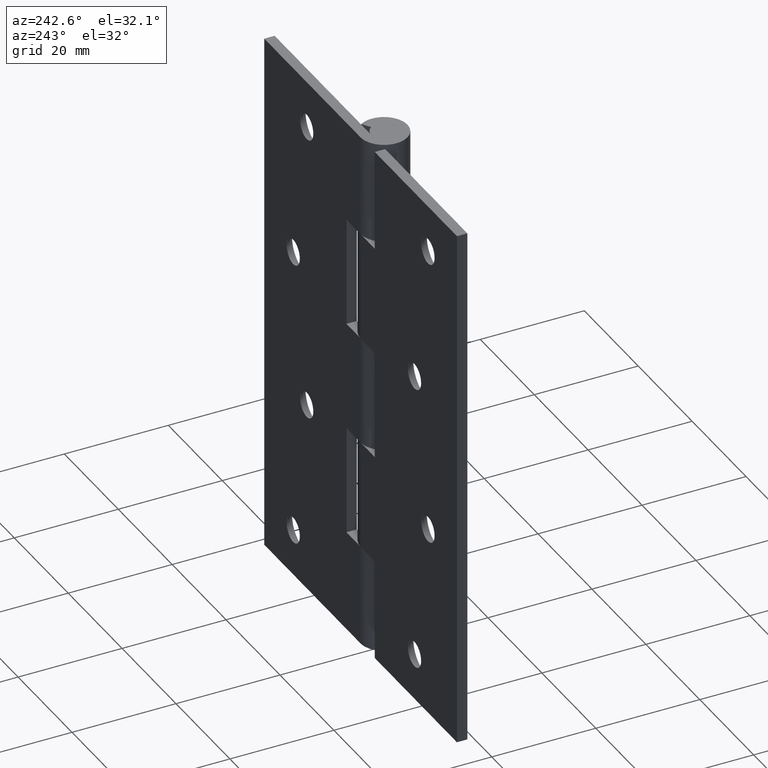
[diagram: clean part render]
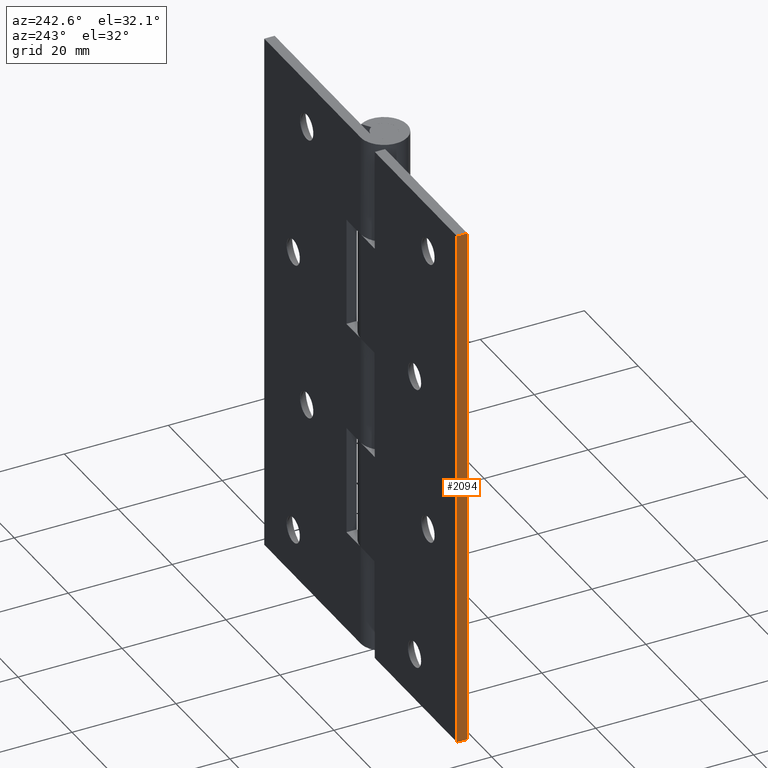
[diagram: same view with one face highlighted and labeled with its STEP entity id]
A machine part, auxiliary view. The second image highlights one B-rep face of the part: STEP entity #2094.
In plain terms, the highlighted face is a freeform B-spline surface patch.
Its self-contained STEP definition (entity closure, byte-faithful):
#2059=CARTESIAN_POINT('',(-35.750000000000000,2.400100003876388,-5.094900201904192));
#2060=CARTESIAN_POINT('',(-35.750000000000000,2.400100003876388,107.094910937757600));
#2061=CARTESIAN_POINT('',(-35.750000000000000,4.599900049767792,-5.094900201904192));
#2062=CARTESIAN_POINT('',(-35.750000000000000,4.599900049767792,107.094910937757600));
#2063=B_SPLINE_SURFACE_WITH_KNOTS('',1,1,((#2059,#2061),(#2060,#2062)),.UNSPECIFIED.,.F.,.F.,.U.,(2,2),(2,2),(0.0,112.189811139661800),(0.0,2.199800045891405),.UNSPECIFIED.);
#2064=CARTESIAN_POINT('',(-35.750000000000000,4.500000000000000,102.000007999999990));
#2065=VERTEX_POINT('',#2064);
#2066=CARTESIAN_POINT('',(-35.750000000000000,2.500000000000000,102.000007999999990));
#2067=VERTEX_POINT('',#2066);
#2068=CARTESIAN_POINT('',(-35.750000000000000,4.500000000000000,102.000007999999990));
#2069=CARTESIAN_POINT('',(-35.750000000000000,2.500000000000000,102.000007999999990));
#2070=QUASI_UNIFORM_CURVE('',1,(#2068,#2069),.UNSPECIFIED.,.F.,.U.);
#2071=EDGE_CURVE('',#2065,#2067,#2070,.T.);
#2072=ORIENTED_EDGE('',*,*,#2071,.F.);
#2073=CARTESIAN_POINT('',(-35.750000000000000,4.500000000000000,0.0));
#2074=VERTEX_POINT('',#2073);
#2075=CARTESIAN_POINT('',(-35.750000000000000,4.500000000000000,0.0));
#2076=CARTESIAN_POINT('',(-35.750000000000000,4.500000000000000,102.000007999999990));
#2077=QUASI_UNIFORM_CURVE('',1,(#2075,#2076),.UNSPECIFIED.,.F.,.U.);
#2078=EDGE_CURVE('',#2074,#2065,#2077,.T.);
#2079=ORIENTED_EDGE('',*,*,#2078,.F.);
#2080=CARTESIAN_POINT('',(-35.750000000000000,2.500000000000000,0.0));
#2081=VERTEX_POINT('',#2080);
#2082=CARTESIAN_POINT('',(-35.750000000000000,4.500000000000000,0.0));
#2083=CARTESIAN_POINT('',(-35.750000000000000,2.500000000000000,0.0));
#2084=QUASI_UNIFORM_CURVE('',1,(#2082,#2083),.UNSPECIFIED.,.F.,.U.);
#2085=EDGE_CURVE('',#2074,#2081,#2084,.T.);
#2086=ORIENTED_EDGE('',*,*,#2085,.T.);
#2087=CARTESIAN_POINT('',(-35.750000000000000,2.500000000000000,0.0));
#2088=CARTESIAN_POINT('',(-35.750000000000000,2.500000000000000,102.000007999999990));
#2089=QUASI_UNIFORM_CURVE('',1,(#2087,#2088),.UNSPECIFIED.,.F.,.U.);
#2090=EDGE_CURVE('',#2081,#2067,#2089,.T.);
#2091=ORIENTED_EDGE('',*,*,#2090,.T.);
#2092=EDGE_LOOP('',(#2072,#2079,#2086,#2091));
#2093=FACE_OUTER_BOUND('',#2092,.T.);
#2094=ADVANCED_FACE('',(#2093),#2063,.T.);